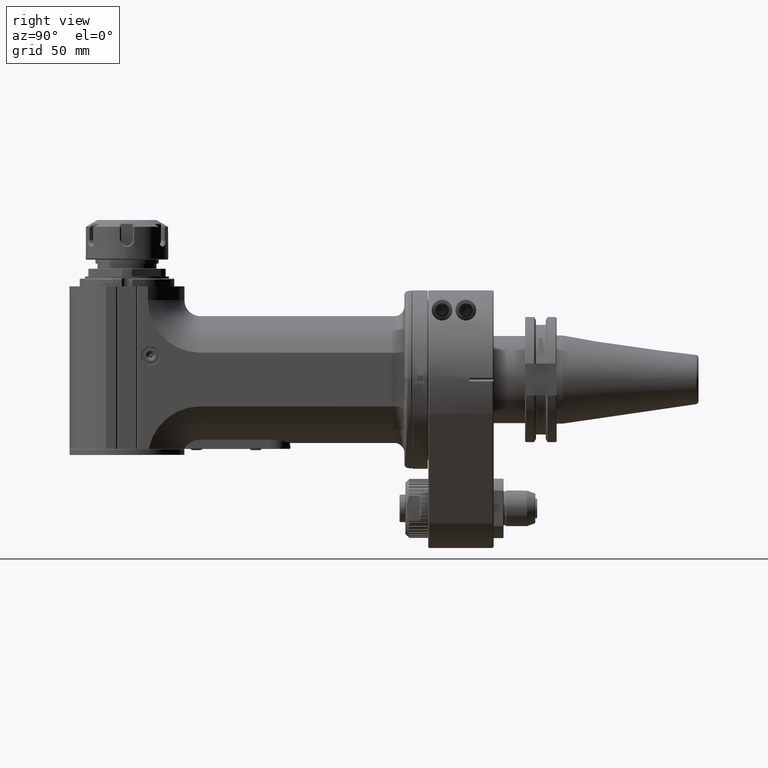
[diagram: clean part render]
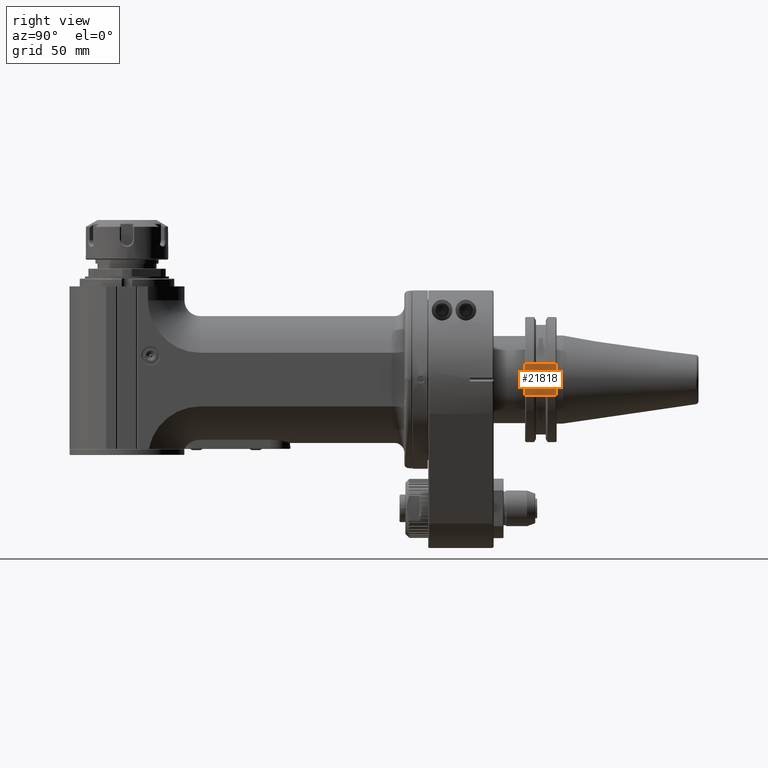
[diagram: same view with one face highlighted and labeled with its STEP entity id]
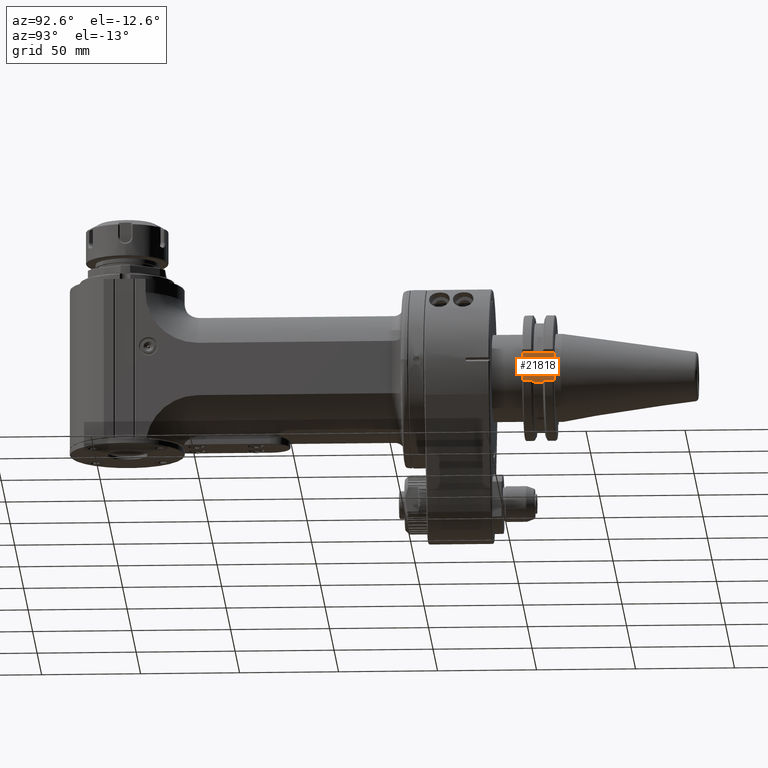
[diagram: same view with one face highlighted and labeled with its STEP entity id]
A machine part, right view. The second image highlights one B-rep face of the part: STEP entity #21818.
A second angle (auxiliary view) of the same face is appended — the face is thin or edge-on in the first view.
In plain terms, the highlighted planar face has unit normal (1, 0, 0).
Its self-contained STEP definition (entity closure, byte-faithful):
#1128=PLANE('',#23732);
#2607=FACE_OUTER_BOUND('',#3916,.T.);
#3916=EDGE_LOOP('',(#20225,#20226,#20227,#20228));
#6772=LINE('',#41462,#8834);
#6780=LINE('',#41484,#8842);
#6781=LINE('',#41486,#8843);
#6782=LINE('',#41487,#8844);
#8834=VECTOR('',#29446,16.09999943118);
#8842=VECTOR('',#29462,15.89999810332);
#8843=VECTOR('',#29463,16.09999943372);
#8844=VECTOR('',#29464,15.8999981029);
#10887=VERTEX_POINT('',#41460);
#10888=VERTEX_POINT('',#41461);
#10898=VERTEX_POINT('',#41483);
#10899=VERTEX_POINT('',#41485);
#14012=EDGE_CURVE('',#10887,#10888,#6772,.T.);
#14023=EDGE_CURVE('',#10898,#10887,#6780,.T.);
#14024=EDGE_CURVE('',#10898,#10899,#6781,.T.);
#14025=EDGE_CURVE('',#10888,#10899,#6782,.T.);
#20225=ORIENTED_EDGE('',*,*,#14012,.F.);
#20226=ORIENTED_EDGE('',*,*,#14023,.F.);
#20227=ORIENTED_EDGE('',*,*,#14024,.T.);
#20228=ORIENTED_EDGE('',*,*,#14025,.F.);
#21818=ADVANCED_FACE('',(#2607),#1128,.T.);
#23732=AXIS2_PLACEMENT_3D('',#41482,#29460,#29461);
#29446=DIRECTION('',(0.,-9.453970032204E-12,-1.));
#29460=DIRECTION('center_axis',(1.,0.,0.));
#29461=DIRECTION('ref_axis',(0.,1.,0.));
#29462=DIRECTION('',(0.,1.,4.906587308519E-9));
#29463=DIRECTION('',(0.,1.649485299303E-11,-1.));
#29464=DIRECTION('',(0.,-1.,-5.066628699931E-9));
#41460=CARTESIAN_POINT('',(22.8,64.799999052063,8.0499997560063));
#41461=CARTESIAN_POINT('',(22.8,64.7999990519119,-8.04999967543008));
#41462=CARTESIAN_POINT('',(22.8,64.79999905163,8.04999975589499));
#41482=CARTESIAN_POINT('Origin',(22.8,48.9,-2.00207206714E-15));
#41483=CARTESIAN_POINT('',(22.8,48.9000009478769,8.0499996780271));
#41484=CARTESIAN_POINT('',(22.8,48.90000094831,8.04999967787999));
#41485=CARTESIAN_POINT('',(22.8,48.9000009481447,-8.04999975595268));
#41486=CARTESIAN_POINT('',(22.8,48.90000094831,8.04999967787999));
#41487=CARTESIAN_POINT('',(22.8,64.79999905148,-8.04999967528201));